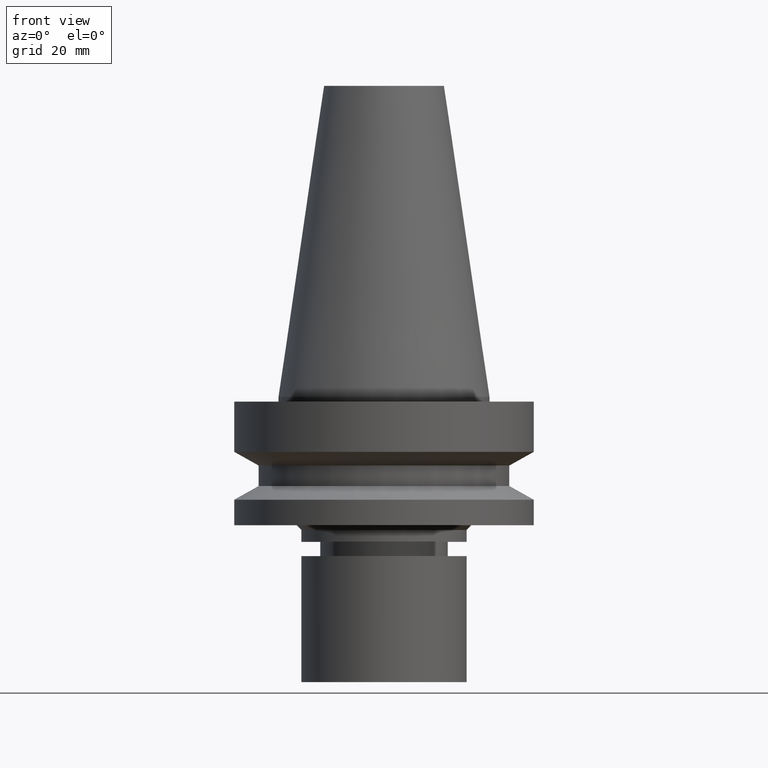
[diagram: clean part render]
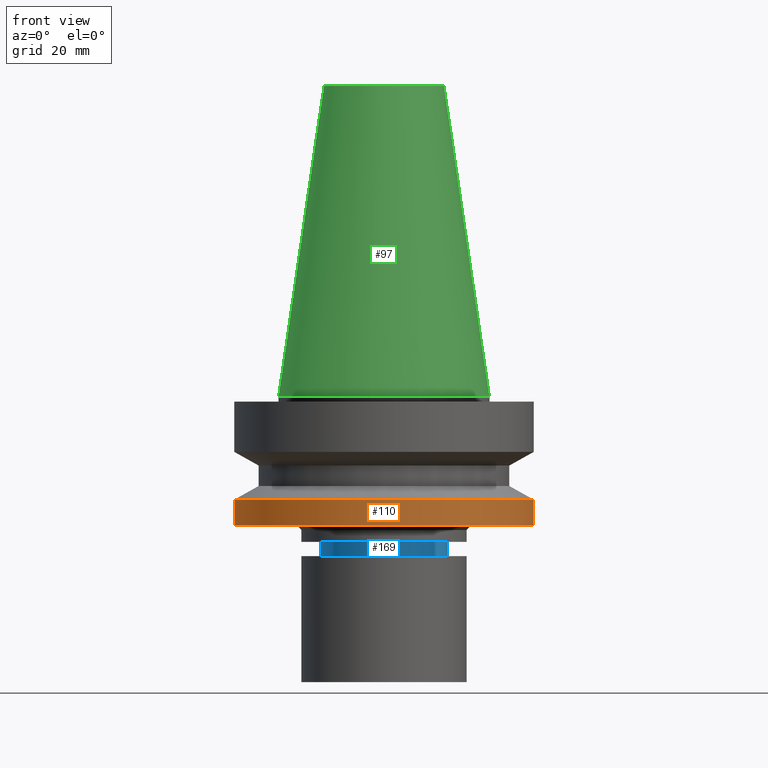
[diagram: same view with three faces highlighted in distinct colors, each labeled with its STEP entity id]
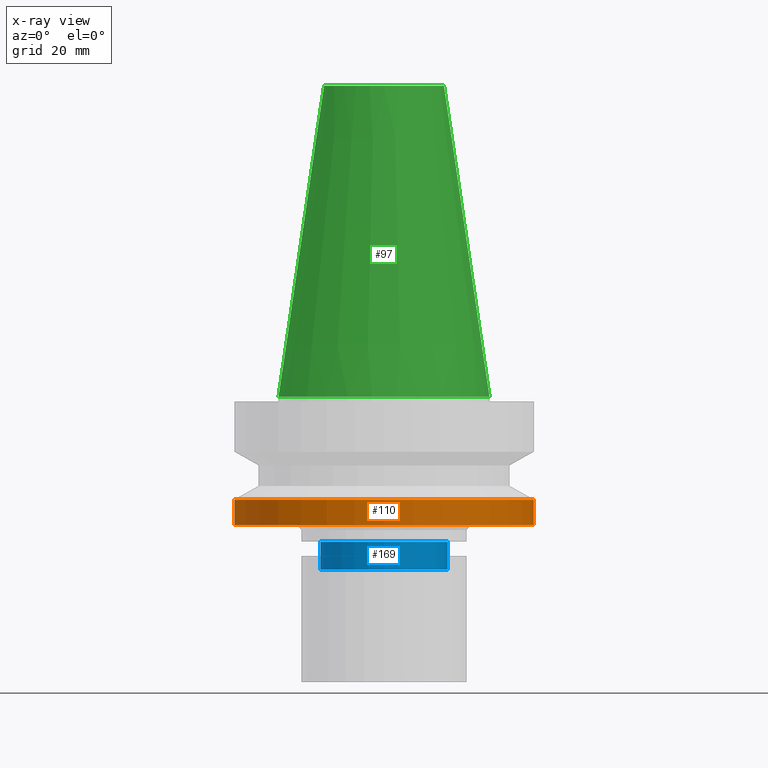
[diagram: x-ray of the same camera — body ghosted, the three highlighted faces saturated]
A machine part, front view with three faces highlighted in distinct colors.
The next image is the same camera in x-ray (body ghosted, the three faces saturated) — at least one of them is partly hidden behind the body in this view.
Their STEP definitions:

[orange] entity #110 — the highlighted cylindrical surface (bore or boss wall) has radius 31.5 mm, axis along (0, -0, -1).
#105=EDGE_CURVE('Unnamed[1]',#249,#249,#250,.T.);
#110=ADVANCED_FACE('Unnamed[1]',(#256,#257),#258,.T.);
#115=EDGE_CURVE('Unnamed[1]',#264,#264,#265,.T.);
#249=VERTEX_POINT('',#436);
#250=CIRCLE('',#437,31.5000000000007);
#256=FACE_BOUND('',#445,.T.);
#257=FACE_BOUND('',#446,.T.);
#258=CYLINDRICAL_SURFACE('',#447,31.5000000000005);
#264=VERTEX_POINT('',#455);
#265=CIRCLE('',#456,31.5000000000004);
#436=CARTESIAN_POINT('',(1.32473071268174E-015,31.5000000000007,-21.6344943473346));
#437=AXIS2_PLACEMENT_3D('',#636,#637,#638);
#445=EDGE_LOOP('',(#643));
#446=EDGE_LOOP('',(#644));
#447=AXIS2_PLACEMENT_3D('',#645,#646,#647);
#455=CARTESIAN_POINT('',(1.65327317884891E-015,31.5000000000004,-26.9999999999998));
#456=AXIS2_PLACEMENT_3D('',#653,#654,#655);
#636=CARTESIAN_POINT('',(1.32473071268174E-015,2.99174493092302E-014,-21.6344943473346));
#637=DIRECTION('',(6.12323399573677E-017,-5.36731610657134E-016,-1.0));
#638=DIRECTION('',(2.80381797188541E-032,1.0,-5.36731610657134E-016));
#643=ORIENTED_EDGE('',*,*,#115,.F.);
#644=ORIENTED_EDGE('',*,*,#105,.T.);
#645=CARTESIAN_POINT('',(1.48900194576533E-015,2.84775310637577E-014,-24.3172471736672));
#646=DIRECTION('',(6.12323399573677E-017,-5.36731610657134E-016,-1.0));
#647=DIRECTION('',(2.80381797188541E-032,1.0,-5.36731610657134E-016));
#653=CARTESIAN_POINT('',(1.65327317884891E-015,2.70376128182853E-014,-26.9999999999997));
#654=DIRECTION('',(6.12323399573677E-017,-5.36731610657134E-016,-1.0));
#655=DIRECTION('',(2.80381797188541E-032,1.0,-5.36731610657134E-016));

[blue] entity #169 — the highlighted cylindrical surface (bore or boss wall) has radius 13.5 mm, axis along (0, -0, -1).
#83=EDGE_CURVE('Unnamed[1]',#213,#213,#214,.T.);
#149=EDGE_CURVE('Unnamed[1]',#315,#315,#316,.T.);
#169=ADVANCED_FACE('Unnamed[1]',(#345,#346),#347,.T.);
#213=VERTEX_POINT('',#392);
#214=CIRCLE('',#393,13.4999999999908);
#315=VERTEX_POINT('',#519);
#316=CIRCLE('',#520,13.5000000000005);
#345=FACE_BOUND('',#557,.T.);
#346=FACE_BOUND('',#558,.T.);
#347=CYLINDRICAL_SURFACE('',#559,13.4999999999956);
#392=CARTESIAN_POINT('',(1.86758636869969E-015,13.4999999999908,-30.4999999999996));
#393=AXIS2_PLACEMENT_3D('',#594,#595,#596);
#519=CARTESIAN_POINT('',(2.22410094420044E-015,13.5000000000005,-36.3223248654052));
#520=AXIS2_PLACEMENT_3D('',#707,#708,#709);
#557=EDGE_LOOP('',(#740));
#558=EDGE_LOOP('',(#741));
#559=AXIS2_PLACEMENT_3D('',#742,#743,#744);
#594=CARTESIAN_POINT('',(1.86758636869969E-015,2.51590521809854E-014,-30.4999999999996));
#595=DIRECTION('',(6.12323399573676E-017,-5.36731610657134E-016,-1.0));
#596=DIRECTION('',(2.80381797188541E-032,1.0,-5.36731610657134E-016));
#707=CARTESIAN_POINT('',(2.22410094420044E-015,2.20340263782072E-014,-36.3223248654052));
#708=DIRECTION('',(6.12323399573677E-017,-5.36731610657134E-016,-1.0));
#709=DIRECTION('',(2.80381797188541E-032,1.0,-5.36731610657134E-016));
#740=ORIENTED_EDGE('',*,*,#149,.F.);
#741=ORIENTED_EDGE('',*,*,#83,.T.);
#742=CARTESIAN_POINT('',(2.04584365645006E-015,2.35965392795963E-014,-33.4111624327024));
#743=DIRECTION('',(6.12323399573677E-017,-5.36731610657134E-016,-1.0));
#744=DIRECTION('',(2.80381797188541E-032,1.0,-5.36731610657134E-016));

[green] entity #97 — the highlighted conical surface has half-angle 8.297 deg.
#81=EDGE_CURVE('Unnamed[1]',#210,#210,#211,.T.);
#97=ADVANCED_FACE('Unnamed[1]',(#235,#236),#237,.T.);
#147=EDGE_CURVE('Unnamed[1]',#312,#312,#313,.T.);
#210=VERTEX_POINT('',#388);
#211=CIRCLE('',#389,12.6875000000001);
#235=FACE_BOUND('',#419,.T.);
#236=FACE_BOUND('',#420,.T.);
#237=CONICAL_SURFACE('',#421,17.4562500000001,0.144812498238936);
#312=VERTEX_POINT('',#515);
#313=CIRCLE('',#516,22.225);
#388=CARTESIAN_POINT('',(-4.00459503321185E-015,12.6875000000002,65.4000000000001));
#389=AXIS2_PLACEMENT_3D('',#591,#592,#593);
#419=EDGE_LOOP('',(#619));
#420=EDGE_LOOP('',(#620));
#421=AXIS2_PLACEMENT_3D('',#621,#622,#623);
#515=CARTESIAN_POINT('',(1.71319921032766E-029,22.2250000000001,-2.8153873565375E-013));
#516=AXIS2_PLACEMENT_3D('',#704,#705,#706);
#591=CARTESIAN_POINT('',(-4.00459503321185E-015,7.66316136430044E-014,65.4000000000001));
#592=DIRECTION('',(6.12323399573677E-017,-5.36731610657134E-016,-1.0));
#593=DIRECTION('',(2.80381797188541E-032,1.0,-5.36731610657134E-016));
#619=ORIENTED_EDGE('',*,*,#147,.F.);
#620=ORIENTED_EDGE('',*,*,#81,.T.);
#621=CARTESIAN_POINT('',(-2.00229751660592E-015,5.9080489974516E-014,32.6999999999999));
#622=DIRECTION('',(6.12323399573677E-017,-5.36731610657134E-016,-1.0));
#623=DIRECTION('',(2.80381797188541E-032,1.0,-5.36731610657134E-016));
#704=CARTESIAN_POINT('',(1.65331138531142E-029,4.15293663060276E-014,-2.70006239588838E-013));
#705=DIRECTION('',(6.12323399573677E-017,-5.36731610657134E-016,-1.0));
#706=DIRECTION('',(2.80381797188541E-032,1.0,-5.36731610657134E-016));